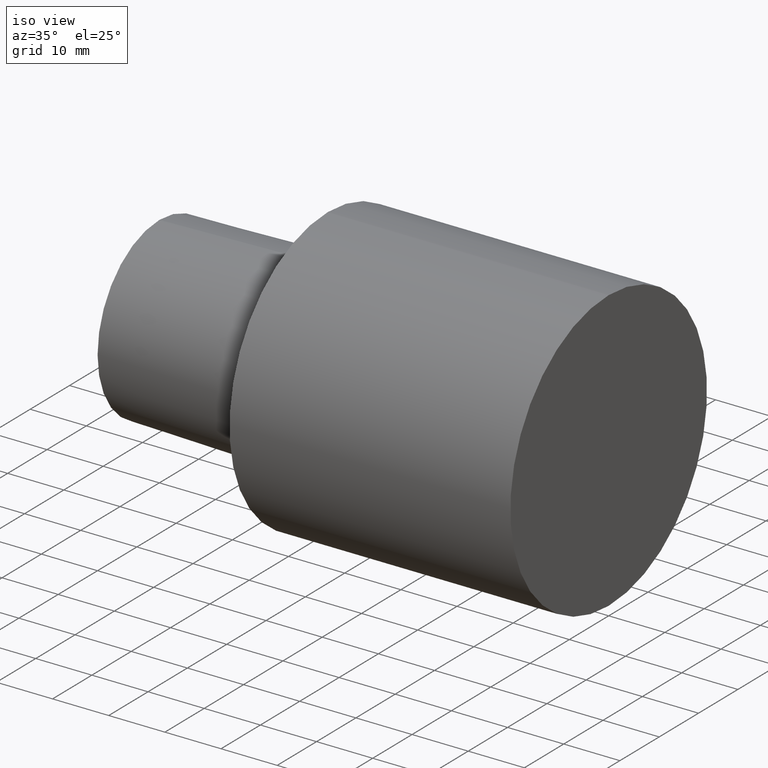
[diagram: clean part render]
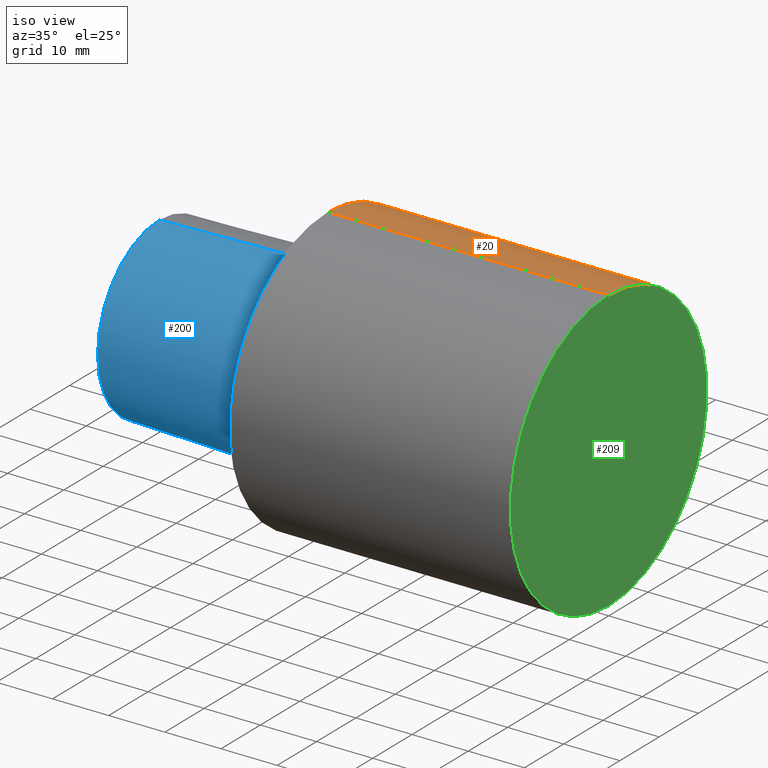
[diagram: same view with three faces highlighted in distinct colors, each labeled with its STEP entity id]
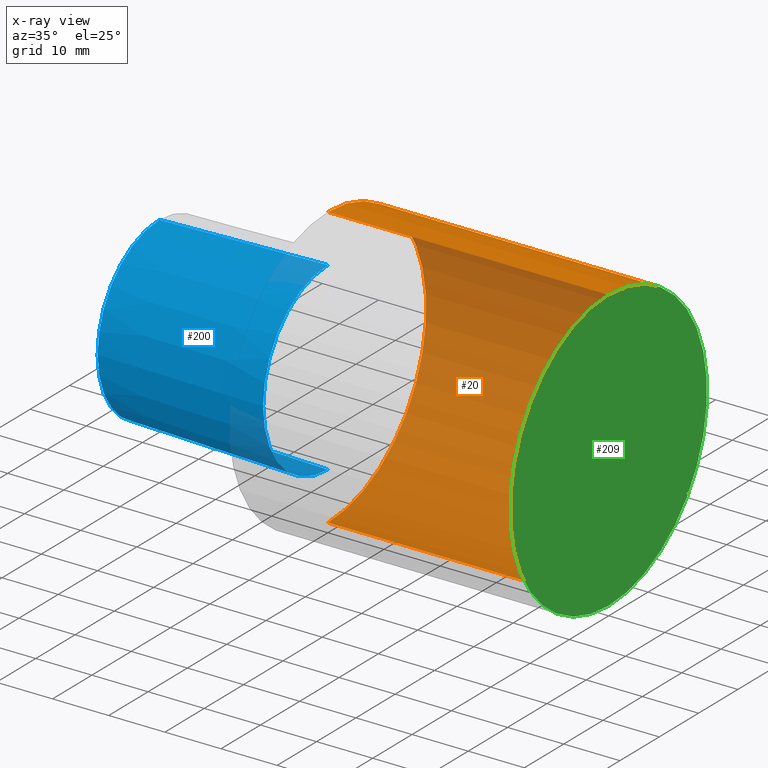
[diagram: x-ray of the same camera — body ghosted, the three highlighted faces saturated]
A machine part, iso view with three faces highlighted in distinct colors.
The next image is the same camera in x-ray (body ghosted, the three faces saturated) — at least one of them is partly hidden behind the body in this view.
Their STEP definitions:

[orange] entity #20 — the highlighted cylindrical surface (partial cylindrical patch) has radius 25 mm, axis along (-1, 0, 0).
#19 = LINE ( 'NONE', #162, #45 ) ;
#20 = ADVANCED_FACE ( 'NONE', ( #129 ), #233, .T. ) ;
#22 = AXIS2_PLACEMENT_3D ( 'NONE', #100, #43, #236 ) ;
#28 = VERTEX_POINT ( 'NONE', #214 ) ;
#35 = CARTESIAN_POINT ( 'NONE',  ( 0.000000000000000000, 3.061616994745535943E-15, -24.99999997449999967 ) ) ;
#36 = LINE ( 'NONE', #131, #41 ) ;
#41 = VECTOR ( 'NONE', #127, 1000.000000000000000 ) ;
#43 = DIRECTION ( 'NONE',  ( -1.000000000000000000, 0.000000000000000000, 0.000000000000000000 ) ) ;
#45 = VECTOR ( 'NONE', #77, 1000.000000000000000 ) ;
#55 = DIRECTION ( 'NONE',  ( 0.000000000000000000, 0.000000000000000000, 1.000000000000000000 ) ) ;
#57 = AXIS2_PLACEMENT_3D ( 'NONE', #117, #219, #178 ) ;
#70 = CARTESIAN_POINT ( 'NONE',  ( -29.99999996940000102, 0.000000000000000000, 0.000000000000000000 ) ) ;
#74 = CARTESIAN_POINT ( 'NONE',  ( 49.99999994899999933, 0.000000000000000000, 24.99999997449999967 ) ) ;
#77 = DIRECTION ( 'NONE',  ( -1.000000000000000000, 0.000000000000000000, 0.000000000000000000 ) ) ;
#87 = CIRCLE ( 'NONE', #57, 24.99999997449999967 ) ;
#100 = CARTESIAN_POINT ( 'NONE',  ( 0.000000000000000000, 0.000000000000000000, 0.000000000000000000 ) ) ;
#113 = VERTEX_POINT ( 'NONE', #74 ) ;
#117 = CARTESIAN_POINT ( 'NONE',  ( 49.99999994899999933, 0.000000000000000000, 0.000000000000000000 ) ) ;
#127 = DIRECTION ( 'NONE',  ( -1.000000000000000000, 0.000000000000000000, 0.000000000000000000 ) ) ;
#129 = FACE_OUTER_BOUND ( 'NONE', #173, .T. ) ;
#131 = CARTESIAN_POINT ( 'NONE',  ( -29.99999996940000102, 3.061616994745535943E-15, -24.99999997449999967 ) ) ;
#137 = EDGE_CURVE ( 'NONE', #28, #156, #36, .T. ) ;
#156 = VERTEX_POINT ( 'NONE', #35 ) ;
#162 = CARTESIAN_POINT ( 'NONE',  ( -29.99999996940000102, 0.000000000000000000, 24.99999997449999967 ) ) ;
#172 = VERTEX_POINT ( 'NONE', #220 ) ;
#173 = EDGE_LOOP ( 'NONE', ( #174, #244, #196, #183 ) ) ;
#174 = ORIENTED_EDGE ( 'NONE', *, *, #215, .T. ) ;
#175 = DIRECTION ( 'NONE',  ( -1.000000000000000000, 0.000000000000000000, 0.000000000000000000 ) ) ;
#177 = EDGE_CURVE ( 'NONE', #172, #156, #189, .T. ) ;
#178 = DIRECTION ( 'NONE',  ( 0.000000000000000000, 0.000000000000000000, 1.000000000000000000 ) ) ;
#183 = ORIENTED_EDGE ( 'NONE', *, *, #245, .F. ) ;
#189 = CIRCLE ( 'NONE', #22, 24.99999997449999967 ) ;
#196 = ORIENTED_EDGE ( 'NONE', *, *, #177, .F. ) ;
#205 = AXIS2_PLACEMENT_3D ( 'NONE', #70, #175, #55 ) ;
#214 = CARTESIAN_POINT ( 'NONE',  ( 49.99999994899999933, 3.061616994745535943E-15, -24.99999997449999967 ) ) ;
#215 = EDGE_CURVE ( 'NONE', #113, #28, #87, .T. ) ;
#219 = DIRECTION ( 'NONE',  ( -1.000000000000000000, 0.000000000000000000, 0.000000000000000000 ) ) ;
#220 = CARTESIAN_POINT ( 'NONE',  ( 0.000000000000000000, 0.000000000000000000, 24.99999997449999967 ) ) ;
#233 = CYLINDRICAL_SURFACE ( 'NONE', #205, 24.99999997449999967 ) ;
#236 = DIRECTION ( 'NONE',  ( 0.000000000000000000, 0.000000000000000000, 1.000000000000000000 ) ) ;
#244 = ORIENTED_EDGE ( 'NONE', *, *, #137, .T. ) ;
#245 = EDGE_CURVE ( 'NONE', #113, #172, #19, .T. ) ;

[blue] entity #200 — the highlighted conical surface has half-angle 1.432 deg.
#13 = AXIS2_PLACEMENT_3D ( 'NONE', #96, #116, #143 ) ;
#15 = DIRECTION ( 'NONE',  ( -1.000000000000000000, 0.000000000000000000, 0.000000000000000000 ) ) ;
#21 = CARTESIAN_POINT ( 'NONE',  ( 0.000000000000000000, 0.000000000000000000, -16.45500658257258664 ) ) ;
#38 = EDGE_CURVE ( 'NONE', #166, #53, #232, .T. ) ;
#42 = EDGE_CURVE ( 'NONE', #207, #166, #109, .T. ) ;
#53 = VERTEX_POINT ( 'NONE', #149 ) ;
#54 = DIRECTION ( 'NONE',  ( -1.000000000000000000, 0.000000000000000000, 0.000000000000000000 ) ) ;
#58 = CARTESIAN_POINT ( 'NONE',  ( -29.99999996940000102, 0.000000000000000000, -15.70494056296217700 ) ) ;
#91 = CARTESIAN_POINT ( 'NONE',  ( -29.99999996940000102, 0.000000000000000000, 0.000000000000000000 ) ) ;
#96 = CARTESIAN_POINT ( 'NONE',  ( 0.000000000000000000, 0.000000000000000000, 0.000000000000000000 ) ) ;
#101 = VECTOR ( 'NONE', #150, 999.9999999999998863 ) ;
#103 = ORIENTED_EDGE ( 'NONE', *, *, #38, .F. ) ;
#106 = ORIENTED_EDGE ( 'NONE', *, *, #42, .F. ) ;
#109 = CIRCLE ( 'NONE', #221, 15.70494056296217700 ) ;
#116 = DIRECTION ( 'NONE',  ( 1.000000000000000000, 0.000000000000000000, 0.000000000000000000 ) ) ;
#130 = AXIS2_PLACEMENT_3D ( 'NONE', #155, #54, #132 ) ;
#132 = DIRECTION ( 'NONE',  ( 0.000000000000000000, 0.000000000000000000, 1.000000000000000000 ) ) ;
#138 = FACE_OUTER_BOUND ( 'NONE', #241, .T. ) ;
#143 = DIRECTION ( 'NONE',  ( 0.000000000000000000, 0.000000000000000000, -1.000000000000000000 ) ) ;
#144 = EDGE_CURVE ( 'NONE', #170, #53, #154, .T. ) ;
#149 = CARTESIAN_POINT ( 'NONE',  ( 0.000000000000000000, 2.015157114129614578E-15, 16.45500658257258664 ) ) ;
#150 = DIRECTION ( 'NONE',  ( 0.9996875914402667540, 3.060929943787468651E-18, 0.02499438977767799372 ) ) ;
#154 = CIRCLE ( 'NONE', #130, 16.45500658257258664 ) ;
#155 = CARTESIAN_POINT ( 'NONE',  ( 0.000000000000000000, 0.000000000000000000, 0.000000000000000000 ) ) ;
#160 = CARTESIAN_POINT ( 'NONE',  ( -29.99999996940000102, 1.969228816626358703E-15, 15.70494056296217700 ) ) ;
#166 = VERTEX_POINT ( 'NONE', #160 ) ;
#170 = VERTEX_POINT ( 'NONE', #21 ) ;
#176 = LINE ( 'NONE', #238, #194 ) ;
#194 = VECTOR ( 'NONE', #237, 999.9999999999998863 ) ;
#200 = ADVANCED_FACE ( 'NONE', ( #138 ), #231, .T. ) ;
#207 = VERTEX_POINT ( 'NONE', #58 ) ;
#212 = CARTESIAN_POINT ( 'NONE',  ( 0.000000000000000000, 2.015157114129614578E-15, 16.45500658257258664 ) ) ;
#221 = AXIS2_PLACEMENT_3D ( 'NONE', #91, #15, #251 ) ;
#228 = ORIENTED_EDGE ( 'NONE', *, *, #144, .T. ) ;
#231 = CONICAL_SURFACE ( 'NONE', #13, 16.45500658257258664, 0.02499699292341668252 ) ;
#232 = LINE ( 'NONE', #212, #101 ) ;
#237 = DIRECTION ( 'NONE',  ( 0.9996875914402667540, 0.000000000000000000, -0.02499438977767799372 ) ) ;
#238 = CARTESIAN_POINT ( 'NONE',  ( 0.000000000000000000, 0.000000000000000000, -16.45500658257258664 ) ) ;
#239 = ORIENTED_EDGE ( 'NONE', *, *, #249, .T. ) ;
#241 = EDGE_LOOP ( 'NONE', ( #103, #106, #239, #228 ) ) ;
#249 = EDGE_CURVE ( 'NONE', #207, #170, #176, .T. ) ;
#251 = DIRECTION ( 'NONE',  ( 0.000000000000000000, 0.000000000000000000, 1.000000000000000000 ) ) ;

[green] entity #209 — the highlighted planar face has unit normal (-1, 0, 0).
#16 = DIRECTION ( 'NONE',  ( 0.000000000000000000, 0.000000000000000000, 1.000000000000000000 ) ) ;
#28 = VERTEX_POINT ( 'NONE', #214 ) ;
#57 = AXIS2_PLACEMENT_3D ( 'NONE', #117, #219, #178 ) ;
#67 = EDGE_CURVE ( 'NONE', #28, #113, #179, .T. ) ;
#73 = DIRECTION ( 'NONE',  ( -1.000000000000000000, 0.000000000000000000, 0.000000000000000000 ) ) ;
#74 = CARTESIAN_POINT ( 'NONE',  ( 49.99999994899999933, 0.000000000000000000, 24.99999997449999967 ) ) ;
#80 = DIRECTION ( 'NONE',  ( 0.000000000000000000, 0.000000000000000000, 1.000000000000000000 ) ) ;
#87 = CIRCLE ( 'NONE', #57, 24.99999997449999967 ) ;
#97 = PLANE ( 'NONE',  #120 ) ;
#99 = AXIS2_PLACEMENT_3D ( 'NONE', #247, #73, #16 ) ;
#113 = VERTEX_POINT ( 'NONE', #74 ) ;
#117 = CARTESIAN_POINT ( 'NONE',  ( 49.99999994899999933, 0.000000000000000000, 0.000000000000000000 ) ) ;
#120 = AXIS2_PLACEMENT_3D ( 'NONE', #135, #253, #80 ) ;
#126 = ORIENTED_EDGE ( 'NONE', *, *, #67, .F. ) ;
#135 = CARTESIAN_POINT ( 'NONE',  ( 49.99999994899999933, 0.000000000000000000, 0.000000000000000000 ) ) ;
#178 = DIRECTION ( 'NONE',  ( 0.000000000000000000, 0.000000000000000000, 1.000000000000000000 ) ) ;
#179 = CIRCLE ( 'NONE', #99, 24.99999997449999967 ) ;
#191 = EDGE_LOOP ( 'NONE', ( #210, #126 ) ) ;
#199 = FACE_OUTER_BOUND ( 'NONE', #191, .T. ) ;
#209 = ADVANCED_FACE ( 'NONE', ( #199 ), #97, .F. ) ;
#210 = ORIENTED_EDGE ( 'NONE', *, *, #215, .F. ) ;
#214 = CARTESIAN_POINT ( 'NONE',  ( 49.99999994899999933, 3.061616994745535943E-15, -24.99999997449999967 ) ) ;
#215 = EDGE_CURVE ( 'NONE', #113, #28, #87, .T. ) ;
#219 = DIRECTION ( 'NONE',  ( -1.000000000000000000, 0.000000000000000000, 0.000000000000000000 ) ) ;
#247 = CARTESIAN_POINT ( 'NONE',  ( 49.99999994899999933, 0.000000000000000000, 0.000000000000000000 ) ) ;
#253 = DIRECTION ( 'NONE',  ( -1.000000000000000000, 0.000000000000000000, 0.000000000000000000 ) ) ;